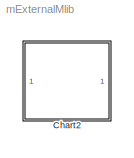
MODEL mExternalMlib
KIND library
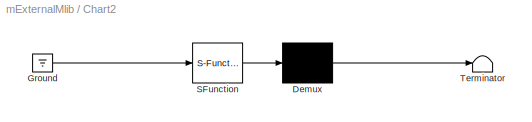
BLOCK [SubSystem] Chart2
  ErrorFcn = Stateflow.Translate.translate
  PermitHierarchicalResolution = ExplicitOnly
  Ports = []
  RequestExecContextInheritance = off
  SFBlockType = Chart
  SID = 1
  TreatAsAtomicUnit = on
BLOCK [Demux] Chart2/ Demux 
  Outputs = 1
  Ports = [1, 1]
  SID = 1::6
BLOCK [Ground] Chart2/ Ground 
  SID = 1::8
BLOCK [S-Function] Chart2/ SFunction 
  FunctionName = sf_sfun
  PortCounts = [1 1]
  Ports = [1, 1]
  SID = 1::5
  Tag = Stateflow S-Function mExternalMlib 3
BLOCK [Terminator] Chart2/ Terminator 
  SID = 1::7
LINE Chart2/ Demux :1 -> Chart2/ Terminator :1
LINE Chart2/ Ground :1 -> Chart2/ SFunction :1
LINE Chart2/ SFunction :1 -> Chart2/ Demux :1
CHART Chart2 states=1 transitions=0
  STATE_LABEL 'em2_out = lib_em2(em2_in)'
